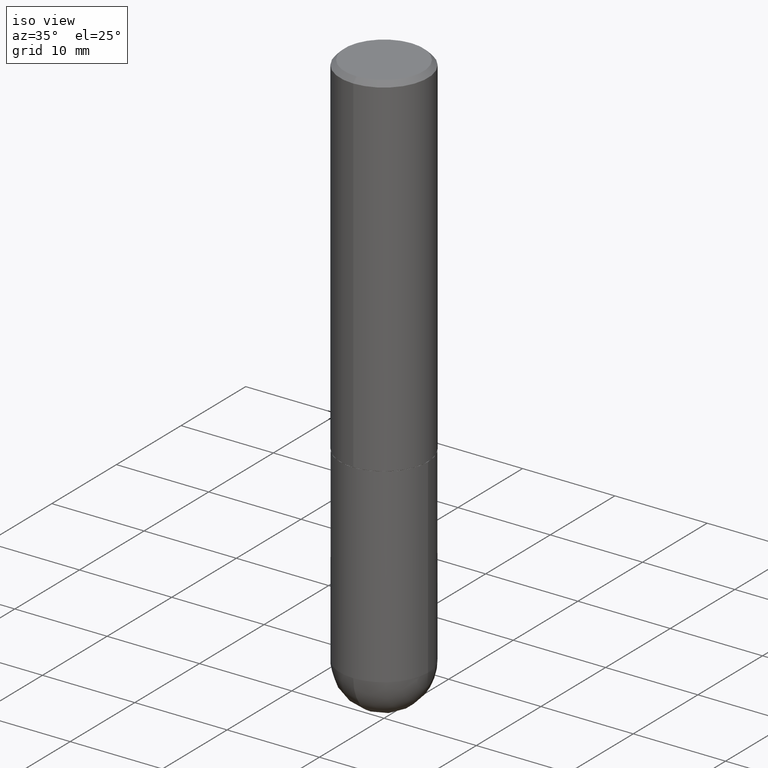
[diagram: clean part render]
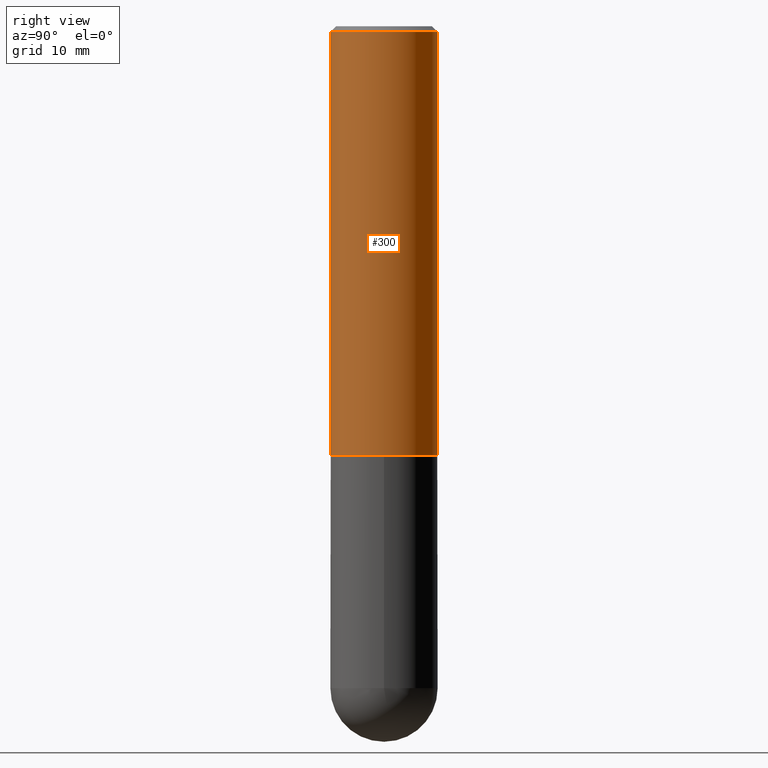
[diagram: tour spotlight — one face highlighted and labeled with its STEP entity id]
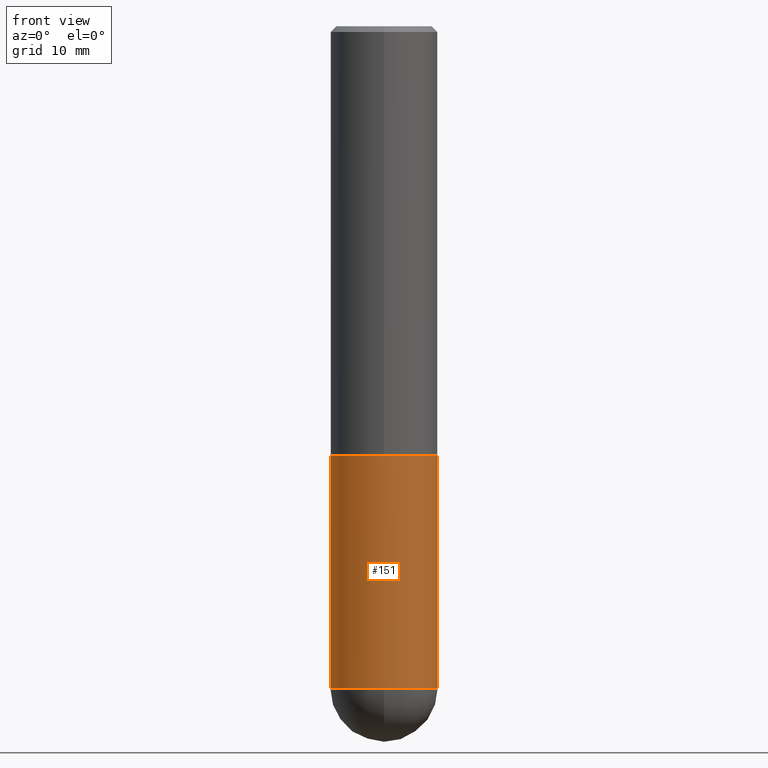
[diagram: tour spotlight — one face highlighted and labeled with its STEP entity id]
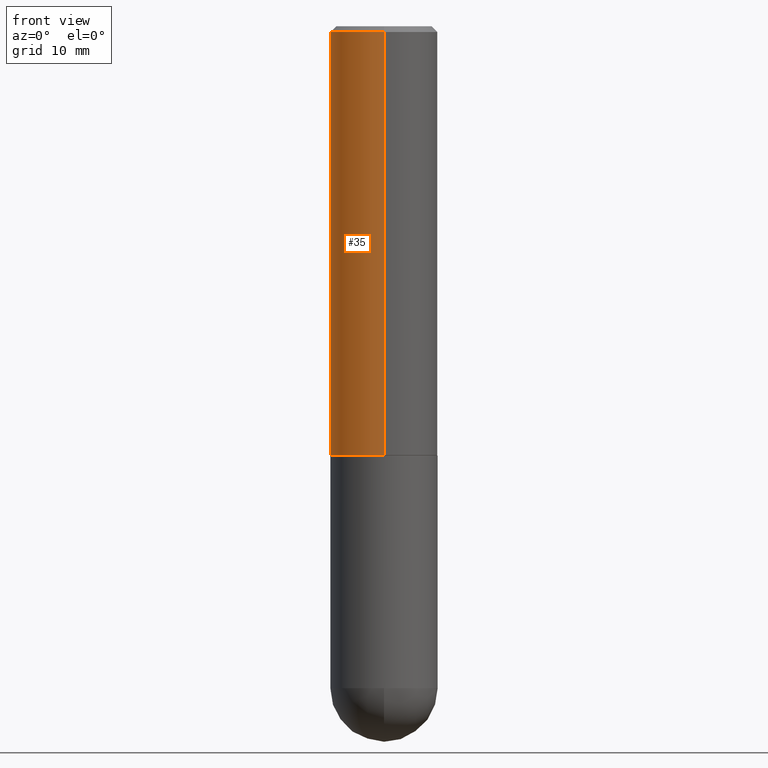
[diagram: tour spotlight — one face highlighted and labeled with its STEP entity id]
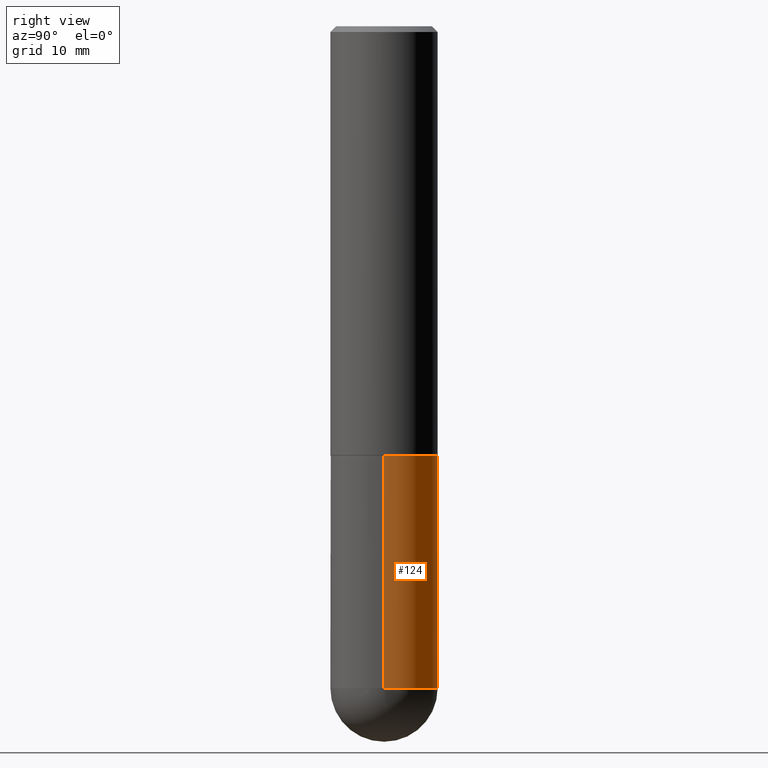
[diagram: tour spotlight — one face highlighted and labeled with its STEP entity id]
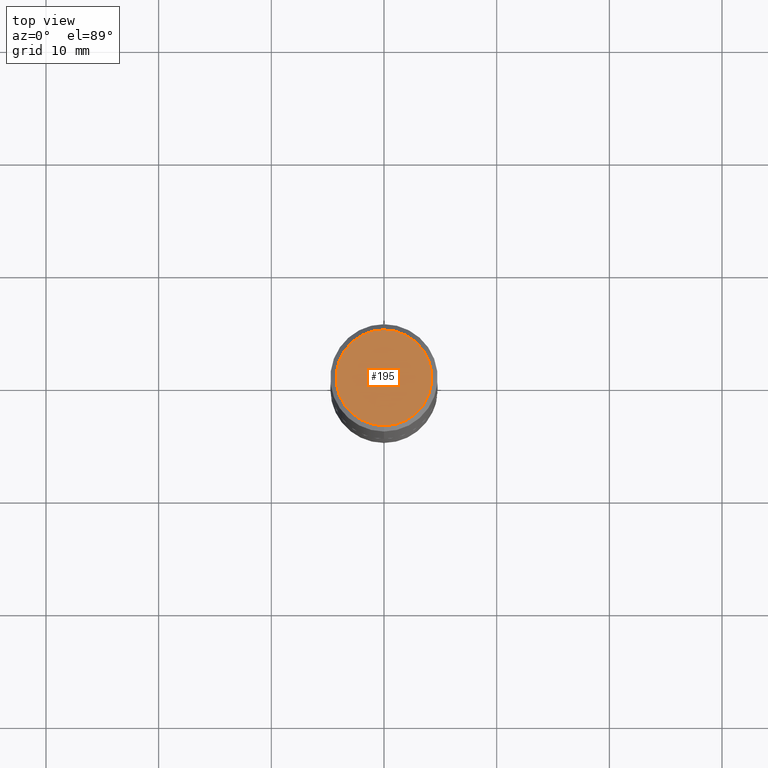
[diagram: tour spotlight — one face highlighted and labeled with its STEP entity id]
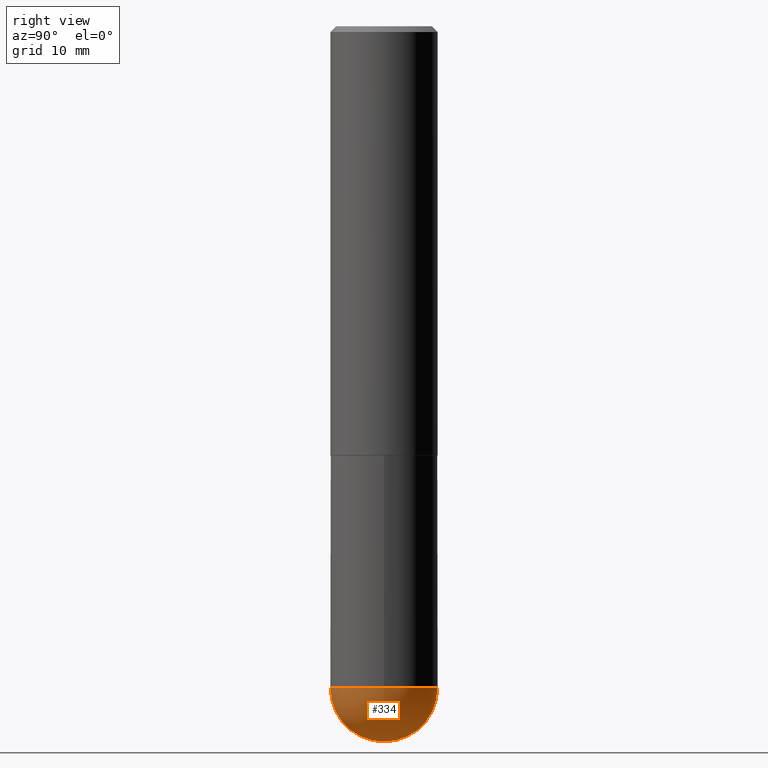
[diagram: tour spotlight — one face highlighted and labeled with its STEP entity id]
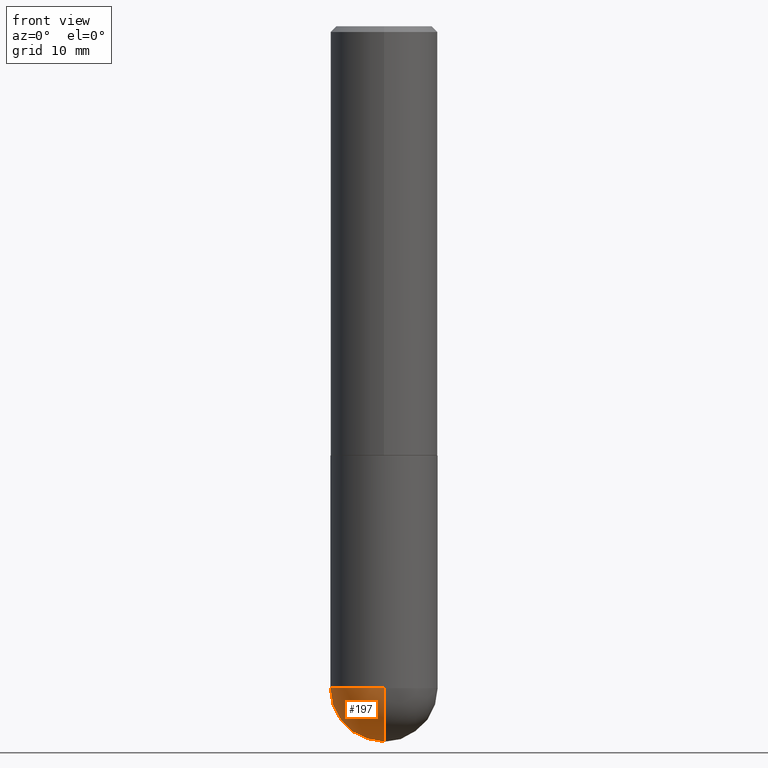
[diagram: tour spotlight — one face highlighted and labeled with its STEP entity id]
A machine part: a face-by-face anatomy tour. The part has 13 B-rep faces; the first image is the clean iso view, then the 7 largest visible faces are spotlighted one at a time (largest first), each with its STEP entity span.

Face 1 — right view, entity #300. In plain terms, the highlighted cylindrical surface (partial cylindrical patch) has radius 4.7625 mm, axis along (-0, 0, 1).
Definition (entity closure, byte-faithful):
#1 = ORIENTED_EDGE ( 'NONE', *, *, #396, .F. ) ;
#12 = EDGE_CURVE ( 'NONE', #157, #142, #246, .T. ) ;
#13 = VECTOR ( 'NONE', #284, 39.37007874015748143 ) ;
#15 = DIRECTION ( 'NONE',  ( -6.982962677686265922E-15, -1.000000000000000000, 2.913971193241877611E-15 ) ) ;
#16 = FACE_OUTER_BOUND ( 'NONE', #186, .T. ) ;
#27 = DIRECTION ( 'NONE',  ( -2.446325823282041021E-29, 3.490254041581994604E-15, 1.000000000000000000 ) ) ;
#46 = DIRECTION ( 'NONE',  ( -6.982962677686266711E-15, -1.000000000000000000, 3.483106191921935949E-15 ) ) ;
#62 = DIRECTION ( 'NONE',  ( -6.982962677686266711E-15, -1.000000000000000000, 3.490254041581994210E-15 ) ) ;
#78 = VERTEX_POINT ( 'NONE', #159 ) ;
#87 = CARTESIAN_POINT ( 'NONE',  ( -1.309305502066139509E-15, -0.1875000000000054123, -1.498999999999999444 ) ) ;
#114 = ORIENTED_EDGE ( 'NONE', *, *, #312, .T. ) ;
#118 = CYLINDRICAL_SURFACE ( 'NONE', #208, 0.1875000000000000833 ) ;
#142 = VERTEX_POINT ( 'NONE', #187 ) ;
#143 = EDGE_CURVE ( 'NONE', #157, #235, #406, .T. ) ;
#153 = CARTESIAN_POINT ( 'NONE',  ( -1.309305502066175600E-15, -0.1875000000000000833, 6.544226327966242348E-16 ) ) ;
#157 = VERTEX_POINT ( 'NONE', #87 ) ;
#159 = CARTESIAN_POINT ( 'NONE',  ( 1.309305502066175205E-15, 0.1874999999999999167, -0.02000000000000069431 ) ) ;
#186 = EDGE_LOOP ( 'NONE', ( #189, #114, #1, #263 ) ) ;
#187 = CARTESIAN_POINT ( 'NONE',  ( 1.332267629550206781E-15, 0.1874999999999949485, -1.499000000000000554 ) ) ;
#189 = ORIENTED_EDGE ( 'NONE', *, *, #12, .T. ) ;
#193 = CIRCLE ( 'NONE', #326, 0.1874999999999999722 ) ;
#201 = DIRECTION ( 'NONE',  ( -2.446325823282041021E-29, 3.490254041581994604E-15, 1.000000000000000000 ) ) ;
#208 = AXIS2_PLACEMENT_3D ( 'NONE', #287, #27, #62 ) ;
#235 = VERTEX_POINT ( 'NONE', #325 ) ;
#243 = CARTESIAN_POINT ( 'NONE',  ( 3.667042409099778861E-29, -5.231890808331411425E-15, -1.499000000000000110 ) ) ;
#246 = CIRCLE ( 'NONE', #377, 0.1875000000000001943 ) ;
#250 = DIRECTION ( 'NONE',  ( -2.446325823282041302E-29, 3.490254041581994604E-15, 1.000000000000000000 ) ) ;
#263 = ORIENTED_EDGE ( 'NONE', *, *, #143, .F. ) ;
#273 = CARTESIAN_POINT ( 'NONE',  ( 4.892651646564092307E-31, -6.980508083164003605E-17, -0.02000000000000004205 ) ) ;
#284 = DIRECTION ( 'NONE',  ( -2.446325823282041302E-29, 3.490254041581994604E-15, 1.000000000000000000 ) ) ;
#287 = CARTESIAN_POINT ( 'NONE',  ( 0.000000000000000000, 0.000000000000000000, 0.000000000000000000 ) ) ;
#300 = ADVANCED_FACE ( 'NONE', ( #16 ), #118, .T. ) ;
#312 = EDGE_CURVE ( 'NONE', #142, #78, #347, .T. ) ;
#313 = VECTOR ( 'NONE', #250, 39.37007874015748143 ) ;
#325 = CARTESIAN_POINT ( 'NONE',  ( -1.286343374582161379E-15, -0.1875000000000000555, -0.01999999999999938979 ) ) ;
#326 = AXIS2_PLACEMENT_3D ( 'NONE', #273, #201, #46 ) ;
#344 = CARTESIAN_POINT ( 'NONE',  ( 1.332267629550188243E-15, 0.1875000000000000833, -6.544226327966242348E-16 ) ) ;
#347 = LINE ( 'NONE', #344, #13 ) ;
#364 = DIRECTION ( 'NONE',  ( -2.446325823282041021E-29, 3.490254041581994604E-15, 1.000000000000000000 ) ) ;
#377 = AXIS2_PLACEMENT_3D ( 'NONE', #243, #364, #15 ) ;
#396 = EDGE_CURVE ( 'NONE', #235, #78, #193, .T. ) ;
#406 = LINE ( 'NONE', #153, #313 ) ;

Face 2 — front view, entity #151. In plain terms, the highlighted cylindrical surface (partial cylindrical patch) has radius 4.7625 mm, axis along (-0, 0, 1).
Definition (entity closure, byte-faithful):
#5 = AXIS2_PLACEMENT_3D ( 'NONE', #335, #275, #401 ) ;
#20 = VECTOR ( 'NONE', #256, 39.37007874015748143 ) ;
#26 = CARTESIAN_POINT ( 'NONE',  ( 0.000000000000000000, 0.000000000000000000, 0.000000000000000000 ) ) ;
#48 = DIRECTION ( 'NONE',  ( -2.445468806185136597E-29, 3.491481338843145583E-15, 1.000000000000000000 ) ) ;
#56 = CIRCLE ( 'NONE', #307, 0.1875000000000000555 ) ;
#57 = DIRECTION ( 'NONE',  ( -2.445468806185136877E-29, 3.491481338843145188E-15, 1.000000000000000000 ) ) ;
#64 = VERTEX_POINT ( 'NONE', #302 ) ;
#72 = CARTESIAN_POINT ( 'NONE',  ( 0.1875000000000000555, -1.309305502066175205E-15, 9.142831454617382414E-30 ) ) ;
#83 = CIRCLE ( 'NONE', #100, 0.1875000000000000555 ) ;
#84 = ORIENTED_EDGE ( 'NONE', *, *, #330, .T. ) ;
#91 = CARTESIAN_POINT ( 'NONE',  ( -0.1875000000000000555, 1.332267629550188243E-15, -9.223003294227950793E-30 ) ) ;
#97 = VERTEX_POINT ( 'NONE', #224 ) ;
#100 = AXIS2_PLACEMENT_3D ( 'NONE', #317, #48, #242 ) ;
#103 = DIRECTION ( 'NONE',  ( -2.445468806185136597E-29, 3.491481338843145583E-15, 1.000000000000000000 ) ) ;
#104 = ORIENTED_EDGE ( 'NONE', *, *, #345, .T. ) ;
#134 = ORIENTED_EDGE ( 'NONE', *, *, #280, .F. ) ;
#145 = CARTESIAN_POINT ( 'NONE',  ( 5.655146614303128380E-29, -8.074050596074775072E-15, -2.312500000000000000 ) ) ;
#151 = ADVANCED_FACE ( 'NONE', ( #343 ), #306, .T. ) ;
#176 = CARTESIAN_POINT ( 'NONE',  ( 0.1875000000000000278, -6.546527510330893974E-15, -1.500000000000000222 ) ) ;
#177 = LINE ( 'NONE', #72, #20 ) ;
#202 = CIRCLE ( 'NONE', #5, 0.1875000000000000278 ) ;
#224 = CARTESIAN_POINT ( 'NONE',  ( -0.1875000000000000278, -5.323368672619557593E-15, -1.500000000000000222 ) ) ;
#240 = DIRECTION ( 'NONE',  ( -2.445468806185136597E-29, 3.491481338843145583E-15, 1.000000000000000000 ) ) ;
#242 = DIRECTION ( 'NONE',  ( 1.000000000000000000, -6.982962677686270655E-15, 0.000000000000000000 ) ) ;
#256 = DIRECTION ( 'NONE',  ( -2.445468806185136877E-29, 3.491481338843145188E-15, 1.000000000000000000 ) ) ;
#266 = EDGE_CURVE ( 'NONE', #410, #293, #177, .T. ) ;
#275 = DIRECTION ( 'NONE',  ( -2.445468806185136597E-29, 3.491481338843145583E-15, 1.000000000000000000 ) ) ;
#280 = EDGE_CURVE ( 'NONE', #97, #293, #202, .T. ) ;
#293 = VERTEX_POINT ( 'NONE', #176 ) ;
#297 = AXIS2_PLACEMENT_3D ( 'NONE', #26, #103, #408 ) ;
#302 = CARTESIAN_POINT ( 'NONE',  ( -0.1875000000000000555, -5.323368672619559170E-15, -2.312500000000000000 ) ) ;
#306 = CYLINDRICAL_SURFACE ( 'NONE', #297, 0.1875000000000000555 ) ;
#307 = AXIS2_PLACEMENT_3D ( 'NONE', #145, #240, #393 ) ;
#317 = CARTESIAN_POINT ( 'NONE',  ( 5.655146614303128380E-29, -8.074050596074775072E-15, -2.312500000000000000 ) ) ;
#321 = ORIENTED_EDGE ( 'NONE', *, *, #266, .T. ) ;
#322 = CARTESIAN_POINT ( 'NONE',  ( 0.1875000000000000555, -7.964941804235924394E-15, -2.312500000000000000 ) ) ;
#330 = EDGE_CURVE ( 'NONE', #64, #385, #83, .T. ) ;
#335 = CARTESIAN_POINT ( 'NONE',  ( 3.668203209277704895E-29, -5.237222008264718177E-15, -1.500000000000000222 ) ) ;
#343 = FACE_OUTER_BOUND ( 'NONE', #358, .T. ) ;
#345 = EDGE_CURVE ( 'NONE', #385, #410, #56, .T. ) ;
#350 = VECTOR ( 'NONE', #57, 39.37007874015748143 ) ;
#356 = ORIENTED_EDGE ( 'NONE', *, *, #412, .F. ) ;
#358 = EDGE_LOOP ( 'NONE', ( #356, #84, #104, #321, #134 ) ) ;
#370 = CARTESIAN_POINT ( 'NONE',  ( -1.332267629550134009E-15, -0.1875000000000084932, -2.312499999999999556 ) ) ;
#385 = VERTEX_POINT ( 'NONE', #370 ) ;
#393 = DIRECTION ( 'NONE',  ( 1.000000000000000000, -6.982962677686270655E-15, 0.000000000000000000 ) ) ;
#395 = LINE ( 'NONE', #91, #350 ) ;
#401 = DIRECTION ( 'NONE',  ( 1.000000000000000000, -6.982962677686266711E-15, 0.000000000000000000 ) ) ;
#408 = DIRECTION ( 'NONE',  ( 1.000000000000000000, -6.982962677686265922E-15, 4.876176775795935793E-29 ) ) ;
#410 = VERTEX_POINT ( 'NONE', #322 ) ;
#412 = EDGE_CURVE ( 'NONE', #64, #97, #395, .T. ) ;

Face 3 — front view, entity #35. In plain terms, the highlighted cylindrical surface (partial cylindrical patch) has radius 4.7625 mm, axis along (-0, 0, 1).
Definition (entity closure, byte-faithful):
#13 = VECTOR ( 'NONE', #284, 39.37007874015748143 ) ;
#18 = ORIENTED_EDGE ( 'NONE', *, *, #312, .F. ) ;
#31 = CARTESIAN_POINT ( 'NONE',  ( 0.000000000000000000, 0.000000000000000000, 0.000000000000000000 ) ) ;
#35 = ADVANCED_FACE ( 'NONE', ( #277 ), #376, .T. ) ;
#36 = EDGE_CURVE ( 'NONE', #78, #235, #169, .T. ) ;
#52 = DIRECTION ( 'NONE',  ( -2.446325823282041021E-29, 3.490254041581994604E-15, 1.000000000000000000 ) ) ;
#63 = DIRECTION ( 'NONE',  ( -6.982962677686266711E-15, -1.000000000000000000, 3.490254041581994210E-15 ) ) ;
#68 = EDGE_LOOP ( 'NONE', ( #18, #258, #106, #109 ) ) ;
#78 = VERTEX_POINT ( 'NONE', #159 ) ;
#87 = CARTESIAN_POINT ( 'NONE',  ( -1.309305502066139509E-15, -0.1875000000000054123, -1.498999999999999444 ) ) ;
#106 = ORIENTED_EDGE ( 'NONE', *, *, #143, .T. ) ;
#109 = ORIENTED_EDGE ( 'NONE', *, *, #36, .F. ) ;
#142 = VERTEX_POINT ( 'NONE', #187 ) ;
#143 = EDGE_CURVE ( 'NONE', #157, #235, #406, .T. ) ;
#144 = AXIS2_PLACEMENT_3D ( 'NONE', #231, #52, #146 ) ;
#146 = DIRECTION ( 'NONE',  ( -6.982962677686265922E-15, -1.000000000000000000, 2.913971193241877611E-15 ) ) ;
#153 = CARTESIAN_POINT ( 'NONE',  ( -1.309305502066175600E-15, -0.1875000000000000833, 6.544226327966242348E-16 ) ) ;
#157 = VERTEX_POINT ( 'NONE', #87 ) ;
#159 = CARTESIAN_POINT ( 'NONE',  ( 1.309305502066175205E-15, 0.1874999999999999167, -0.02000000000000069431 ) ) ;
#160 = AXIS2_PLACEMENT_3D ( 'NONE', #309, #218, #179 ) ;
#169 = CIRCLE ( 'NONE', #160, 0.1874999999999999722 ) ;
#179 = DIRECTION ( 'NONE',  ( -6.982962677686266711E-15, -1.000000000000000000, 3.483106191921935949E-15 ) ) ;
#187 = CARTESIAN_POINT ( 'NONE',  ( 1.332267629550206781E-15, 0.1874999999999949485, -1.499000000000000554 ) ) ;
#209 = EDGE_CURVE ( 'NONE', #142, #157, #378, .T. ) ;
#218 = DIRECTION ( 'NONE',  ( -2.446325823282041021E-29, 3.490254041581994604E-15, 1.000000000000000000 ) ) ;
#231 = CARTESIAN_POINT ( 'NONE',  ( 3.667042409099778861E-29, -5.231890808331411425E-15, -1.499000000000000110 ) ) ;
#235 = VERTEX_POINT ( 'NONE', #325 ) ;
#250 = DIRECTION ( 'NONE',  ( -2.446325823282041302E-29, 3.490254041581994604E-15, 1.000000000000000000 ) ) ;
#258 = ORIENTED_EDGE ( 'NONE', *, *, #209, .T. ) ;
#277 = FACE_OUTER_BOUND ( 'NONE', #68, .T. ) ;
#284 = DIRECTION ( 'NONE',  ( -2.446325823282041302E-29, 3.490254041581994604E-15, 1.000000000000000000 ) ) ;
#309 = CARTESIAN_POINT ( 'NONE',  ( 4.892651646564092307E-31, -6.980508083164003605E-17, -0.02000000000000004205 ) ) ;
#312 = EDGE_CURVE ( 'NONE', #142, #78, #347, .T. ) ;
#313 = VECTOR ( 'NONE', #250, 39.37007874015748143 ) ;
#325 = CARTESIAN_POINT ( 'NONE',  ( -1.286343374582161379E-15, -0.1875000000000000555, -0.01999999999999938979 ) ) ;
#328 = AXIS2_PLACEMENT_3D ( 'NONE', #31, #333, #63 ) ;
#333 = DIRECTION ( 'NONE',  ( -2.446325823282041021E-29, 3.490254041581994604E-15, 1.000000000000000000 ) ) ;
#344 = CARTESIAN_POINT ( 'NONE',  ( 1.332267629550188243E-15, 0.1875000000000000833, -6.544226327966242348E-16 ) ) ;
#347 = LINE ( 'NONE', #344, #13 ) ;
#376 = CYLINDRICAL_SURFACE ( 'NONE', #328, 0.1875000000000000833 ) ;
#378 = CIRCLE ( 'NONE', #144, 0.1875000000000001943 ) ;
#406 = LINE ( 'NONE', #153, #313 ) ;

Face 4 — right view, entity #124. In plain terms, the highlighted cylindrical surface (partial cylindrical patch) has radius 4.7625 mm, axis along (-0, 0, 1).
Definition (entity closure, byte-faithful):
#11 = EDGE_LOOP ( 'NONE', ( #286, #348, #318, #37, #40 ) ) ;
#19 = CARTESIAN_POINT ( 'NONE',  ( 5.655146614303128380E-29, -8.074050596074775072E-15, -2.312500000000000000 ) ) ;
#20 = VECTOR ( 'NONE', #256, 39.37007874015748143 ) ;
#37 = ORIENTED_EDGE ( 'NONE', *, *, #266, .F. ) ;
#40 = ORIENTED_EDGE ( 'NONE', *, *, #181, .T. ) ;
#42 = AXIS2_PLACEMENT_3D ( 'NONE', #121, #212, #366 ) ;
#47 = EDGE_CURVE ( 'NONE', #293, #97, #222, .T. ) ;
#50 = AXIS2_PLACEMENT_3D ( 'NONE', #191, #105, #206 ) ;
#57 = DIRECTION ( 'NONE',  ( -2.445468806185136877E-29, 3.491481338843145188E-15, 1.000000000000000000 ) ) ;
#61 = CARTESIAN_POINT ( 'NONE',  ( 0.000000000000000000, 0.000000000000000000, 0.000000000000000000 ) ) ;
#64 = VERTEX_POINT ( 'NONE', #302 ) ;
#72 = CARTESIAN_POINT ( 'NONE',  ( 0.1875000000000000555, -1.309305502066175205E-15, 9.142831454617382414E-30 ) ) ;
#91 = CARTESIAN_POINT ( 'NONE',  ( -0.1875000000000000555, 1.332267629550188243E-15, -9.223003294227950793E-30 ) ) ;
#97 = VERTEX_POINT ( 'NONE', #224 ) ;
#105 = DIRECTION ( 'NONE',  ( -2.445468806185136597E-29, 3.491481338843145583E-15, 1.000000000000000000 ) ) ;
#121 = CARTESIAN_POINT ( 'NONE',  ( 3.668203209277704895E-29, -5.237222008264718177E-15, -1.500000000000000222 ) ) ;
#123 = CARTESIAN_POINT ( 'NONE',  ( 1.309305502066231017E-15, 0.1874999999999918954, -2.312500000000000444 ) ) ;
#124 = ADVANCED_FACE ( 'NONE', ( #398 ), #245, .T. ) ;
#176 = CARTESIAN_POINT ( 'NONE',  ( 0.1875000000000000278, -6.546527510330893974E-15, -1.500000000000000222 ) ) ;
#177 = LINE ( 'NONE', #72, #20 ) ;
#181 = EDGE_CURVE ( 'NONE', #410, #290, #228, .T. ) ;
#183 = DIRECTION ( 'NONE',  ( -2.445468806185136597E-29, 3.491481338843145583E-15, 1.000000000000000000 ) ) ;
#191 = CARTESIAN_POINT ( 'NONE',  ( 5.655146614303128380E-29, -8.074050596074775072E-15, -2.312500000000000000 ) ) ;
#206 = DIRECTION ( 'NONE',  ( 1.000000000000000000, -6.982962677686270655E-15, 0.000000000000000000 ) ) ;
#212 = DIRECTION ( 'NONE',  ( -2.445468806185136597E-29, 3.491481338843145583E-15, 1.000000000000000000 ) ) ;
#222 = CIRCLE ( 'NONE', #42, 0.1875000000000000278 ) ;
#224 = CARTESIAN_POINT ( 'NONE',  ( -0.1875000000000000278, -5.323368672619557593E-15, -1.500000000000000222 ) ) ;
#228 = CIRCLE ( 'NONE', #50, 0.1875000000000000555 ) ;
#245 = CYLINDRICAL_SURFACE ( 'NONE', #298, 0.1875000000000000555 ) ;
#256 = DIRECTION ( 'NONE',  ( -2.445468806185136877E-29, 3.491481338843145188E-15, 1.000000000000000000 ) ) ;
#266 = EDGE_CURVE ( 'NONE', #410, #293, #177, .T. ) ;
#270 = CIRCLE ( 'NONE', #369, 0.1875000000000000555 ) ;
#283 = EDGE_CURVE ( 'NONE', #290, #64, #270, .T. ) ;
#286 = ORIENTED_EDGE ( 'NONE', *, *, #283, .T. ) ;
#290 = VERTEX_POINT ( 'NONE', #123 ) ;
#293 = VERTEX_POINT ( 'NONE', #176 ) ;
#298 = AXIS2_PLACEMENT_3D ( 'NONE', #61, #183, #303 ) ;
#301 = DIRECTION ( 'NONE',  ( -2.445468806185136597E-29, 3.491481338843145583E-15, 1.000000000000000000 ) ) ;
#302 = CARTESIAN_POINT ( 'NONE',  ( -0.1875000000000000555, -5.323368672619559170E-15, -2.312500000000000000 ) ) ;
#303 = DIRECTION ( 'NONE',  ( 1.000000000000000000, -6.982962677686265922E-15, 4.876176775795935793E-29 ) ) ;
#318 = ORIENTED_EDGE ( 'NONE', *, *, #47, .F. ) ;
#322 = CARTESIAN_POINT ( 'NONE',  ( 0.1875000000000000555, -7.964941804235924394E-15, -2.312500000000000000 ) ) ;
#348 = ORIENTED_EDGE ( 'NONE', *, *, #412, .T. ) ;
#350 = VECTOR ( 'NONE', #57, 39.37007874015748143 ) ;
#366 = DIRECTION ( 'NONE',  ( 1.000000000000000000, -6.982962677686266711E-15, 0.000000000000000000 ) ) ;
#369 = AXIS2_PLACEMENT_3D ( 'NONE', #19, #301, #399 ) ;
#395 = LINE ( 'NONE', #91, #350 ) ;
#398 = FACE_OUTER_BOUND ( 'NONE', #11, .T. ) ;
#399 = DIRECTION ( 'NONE',  ( 1.000000000000000000, -6.982962677686270655E-15, 0.000000000000000000 ) ) ;
#410 = VERTEX_POINT ( 'NONE', #322 ) ;
#412 = EDGE_CURVE ( 'NONE', #64, #97, #395, .T. ) ;

Face 5 — top view, entity #195. In plain terms, the highlighted planar face has unit normal (0, -0, -1).
Definition (entity closure, byte-faithful):
#4 = DIRECTION ( 'NONE',  ( 2.446325823282040741E-29, -3.490254041581994604E-15, -1.000000000000000000 ) ) ;
#32 = VERTEX_POINT ( 'NONE', #101 ) ;
#33 = AXIS2_PLACEMENT_3D ( 'NONE', #372, #89, #215 ) ;
#41 = ORIENTED_EDGE ( 'NONE', *, *, #225, .T. ) ;
#49 = CARTESIAN_POINT ( 'NONE',  ( 1.169646248512449398E-15, 0.1674999999999999545, -5.740490568853542942E-16 ) ) ;
#65 = CIRCLE ( 'NONE', #119, 0.1674999999999999545 ) ;
#75 = CARTESIAN_POINT ( 'NONE',  ( -5.170796485305438754E-46, 7.377346533023360071E-32, 2.113699015925929127E-17 ) ) ;
#89 = DIRECTION ( 'NONE',  ( -2.446325823282041021E-29, 3.490254041581994604E-15, 1.000000000000000000 ) ) ;
#101 = CARTESIAN_POINT ( 'NONE',  ( -1.217738394604446442E-15, -0.1674999999999999545, 6.057545421242431695E-16 ) ) ;
#102 = EDGE_CURVE ( 'NONE', #361, #32, #259, .T. ) ;
#110 = ORIENTED_EDGE ( 'NONE', *, *, #102, .T. ) ;
#117 = FACE_OUTER_BOUND ( 'NONE', #232, .T. ) ;
#119 = AXIS2_PLACEMENT_3D ( 'NONE', #75, #324, #173 ) ;
#173 = DIRECTION ( 'NONE',  ( -6.982962677686266711E-15, -1.000000000000000000, 3.490254041581994210E-15 ) ) ;
#195 = ADVANCED_FACE ( 'NONE', ( #117 ), #316, .F. ) ;
#215 = DIRECTION ( 'NONE',  ( -6.982962677686266711E-15, -1.000000000000000000, 3.490254041581994210E-15 ) ) ;
#225 = EDGE_CURVE ( 'NONE', #32, #361, #65, .T. ) ;
#232 = EDGE_LOOP ( 'NONE', ( #110, #41 ) ) ;
#259 = CIRCLE ( 'NONE', #33, 0.1674999999999999545 ) ;
#274 = AXIS2_PLACEMENT_3D ( 'NONE', #49, #4, #346 ) ;
#316 = PLANE ( 'NONE',  #274 ) ;
#324 = DIRECTION ( 'NONE',  ( -2.446325823282041021E-29, 3.490254041581994604E-15, 1.000000000000000000 ) ) ;
#346 = DIRECTION ( 'NONE',  ( 6.982962677686265922E-15, 1.000000000000000000, -3.490254041581994604E-15 ) ) ;
#361 = VERTEX_POINT ( 'NONE', #394 ) ;
#372 = CARTESIAN_POINT ( 'NONE',  ( -5.170796485305438754E-46, 7.377346533023360071E-32, 2.113699015925929127E-17 ) ) ;
#394 = CARTESIAN_POINT ( 'NONE',  ( 1.239475875289312499E-15, 0.1674999999999999545, -5.634805618057246363E-16 ) ) ;

Face 6 — right view, entity #334. In plain terms, the highlighted spherical surface has radius 4.7625 mm.
Definition (entity closure, byte-faithful):
#50 = AXIS2_PLACEMENT_3D ( 'NONE', #191, #105, #206 ) ;
#56 = CIRCLE ( 'NONE', #307, 0.1875000000000000555 ) ;
#79 = ORIENTED_EDGE ( 'NONE', *, *, #181, .F. ) ;
#93 = CARTESIAN_POINT ( 'NONE',  ( 5.324026836389243254E-29, -8.548232964214825368E-15, -2.312500000000000000 ) ) ;
#105 = DIRECTION ( 'NONE',  ( -2.445468806185136597E-29, 3.491481338843145583E-15, 1.000000000000000000 ) ) ;
#108 = AXIS2_PLACEMENT_3D ( 'NONE', #93, #216, #154 ) ;
#123 = CARTESIAN_POINT ( 'NONE',  ( 1.309305502066231017E-15, 0.1874999999999918954, -2.312500000000000444 ) ) ;
#145 = CARTESIAN_POINT ( 'NONE',  ( 5.655146614303128380E-29, -8.074050596074775072E-15, -2.312500000000000000 ) ) ;
#147 = CARTESIAN_POINT ( 'NONE',  ( 5.324026836389243254E-29, -8.548232964214825368E-15, -2.312500000000000000 ) ) ;
#154 = DIRECTION ( 'NONE',  ( 6.982962677686265922E-15, 1.000000000000000000, 0.000000000000000000 ) ) ;
#175 = SPHERICAL_SURFACE ( 'NONE', #291, 0.1875000000000003331 ) ;
#178 = DIRECTION ( 'NONE',  ( -1.000000000000000000, 6.982962677686266711E-15, -4.883557194083113462E-29 ) ) ;
#180 = FACE_OUTER_BOUND ( 'NONE', #199, .T. ) ;
#181 = EDGE_CURVE ( 'NONE', #410, #290, #228, .T. ) ;
#191 = CARTESIAN_POINT ( 'NONE',  ( 5.655146614303128380E-29, -8.074050596074775072E-15, -2.312500000000000000 ) ) ;
#199 = EDGE_LOOP ( 'NONE', ( #226, #381, #79, #292 ) ) ;
#206 = DIRECTION ( 'NONE',  ( 1.000000000000000000, -6.982962677686270655E-15, 0.000000000000000000 ) ) ;
#213 = CARTESIAN_POINT ( 'NONE',  ( 5.324026836389243254E-29, -8.548232964214825368E-15, -2.312500000000000000 ) ) ;
#214 = CIRCLE ( 'NONE', #108, 0.1875000000000003331 ) ;
#216 = DIRECTION ( 'NONE',  ( 1.000000000000000000, -6.982962677686265922E-15, 4.883557194083112340E-29 ) ) ;
#226 = ORIENTED_EDGE ( 'NONE', *, *, #353, .F. ) ;
#228 = CIRCLE ( 'NONE', #50, 0.1875000000000000555 ) ;
#237 = DIRECTION ( 'NONE',  ( 6.982962677686266711E-15, 1.000000000000000000, -2.913971193241875639E-15 ) ) ;
#240 = DIRECTION ( 'NONE',  ( -2.445468806185136597E-29, 3.491481338843145583E-15, 1.000000000000000000 ) ) ;
#241 = CIRCLE ( 'NONE', #339, 0.1875000000000003331 ) ;
#268 = DIRECTION ( 'NONE',  ( -7.105427357600999492E-15, -1.000000000000000000, 0.000000000000000000 ) ) ;
#281 = VERTEX_POINT ( 'NONE', #354 ) ;
#290 = VERTEX_POINT ( 'NONE', #123 ) ;
#291 = AXIS2_PLACEMENT_3D ( 'NONE', #213, #178, #237 ) ;
#292 = ORIENTED_EDGE ( 'NONE', *, *, #345, .F. ) ;
#307 = AXIS2_PLACEMENT_3D ( 'NONE', #145, #240, #393 ) ;
#322 = CARTESIAN_POINT ( 'NONE',  ( 0.1875000000000000555, -7.964941804235924394E-15, -2.312500000000000000 ) ) ;
#327 = DIRECTION ( 'NONE',  ( -1.000000000000000000, 7.105427357601001070E-15, -4.926315508542082329E-29 ) ) ;
#334 = ADVANCED_FACE ( 'NONE', ( #180 ), #175, .T. ) ;
#339 = AXIS2_PLACEMENT_3D ( 'NONE', #147, #327, #268 ) ;
#345 = EDGE_CURVE ( 'NONE', #385, #410, #56, .T. ) ;
#353 = EDGE_CURVE ( 'NONE', #281, #385, #241, .T. ) ;
#354 = CARTESIAN_POINT ( 'NONE',  ( 5.790569421510013204E-29, -9.191404651505909607E-15, -2.500000000000000000 ) ) ;
#370 = CARTESIAN_POINT ( 'NONE',  ( -1.332267629550134009E-15, -0.1875000000000084932, -2.312499999999999556 ) ) ;
#381 = ORIENTED_EDGE ( 'NONE', *, *, #389, .T. ) ;
#385 = VERTEX_POINT ( 'NONE', #370 ) ;
#389 = EDGE_CURVE ( 'NONE', #281, #290, #214, .T. ) ;
#393 = DIRECTION ( 'NONE',  ( 1.000000000000000000, -6.982962677686270655E-15, 0.000000000000000000 ) ) ;
#410 = VERTEX_POINT ( 'NONE', #322 ) ;

Face 7 — front view, entity #197. In plain terms, the highlighted spherical surface has radius 4.7625 mm.
Definition (entity closure, byte-faithful):
#19 = CARTESIAN_POINT ( 'NONE',  ( 5.655146614303128380E-29, -8.074050596074775072E-15, -2.312500000000000000 ) ) ;
#48 = DIRECTION ( 'NONE',  ( -2.445468806185136597E-29, 3.491481338843145583E-15, 1.000000000000000000 ) ) ;
#64 = VERTEX_POINT ( 'NONE', #302 ) ;
#80 = DIRECTION ( 'NONE',  ( 6.982962677686266711E-15, 1.000000000000000000, -2.913971193241875639E-15 ) ) ;
#83 = CIRCLE ( 'NONE', #100, 0.1875000000000000555 ) ;
#93 = CARTESIAN_POINT ( 'NONE',  ( 5.324026836389243254E-29, -8.548232964214825368E-15, -2.312500000000000000 ) ) ;
#100 = AXIS2_PLACEMENT_3D ( 'NONE', #317, #48, #242 ) ;
#107 = AXIS2_PLACEMENT_3D ( 'NONE', #357, #352, #80 ) ;
#108 = AXIS2_PLACEMENT_3D ( 'NONE', #93, #216, #154 ) ;
#123 = CARTESIAN_POINT ( 'NONE',  ( 1.309305502066231017E-15, 0.1874999999999918954, -2.312500000000000444 ) ) ;
#147 = CARTESIAN_POINT ( 'NONE',  ( 5.324026836389243254E-29, -8.548232964214825368E-15, -2.312500000000000000 ) ) ;
#154 = DIRECTION ( 'NONE',  ( 6.982962677686265922E-15, 1.000000000000000000, 0.000000000000000000 ) ) ;
#165 = ORIENTED_EDGE ( 'NONE', *, *, #330, .F. ) ;
#166 = ORIENTED_EDGE ( 'NONE', *, *, #389, .F. ) ;
#168 = ORIENTED_EDGE ( 'NONE', *, *, #353, .T. ) ;
#197 = ADVANCED_FACE ( 'NONE', ( #227 ), #238, .T. ) ;
#214 = CIRCLE ( 'NONE', #108, 0.1875000000000003331 ) ;
#216 = DIRECTION ( 'NONE',  ( 1.000000000000000000, -6.982962677686265922E-15, 4.883557194083112340E-29 ) ) ;
#220 = ORIENTED_EDGE ( 'NONE', *, *, #283, .F. ) ;
#227 = FACE_OUTER_BOUND ( 'NONE', #233, .T. ) ;
#233 = EDGE_LOOP ( 'NONE', ( #166, #168, #165, #220 ) ) ;
#238 = SPHERICAL_SURFACE ( 'NONE', #107, 0.1875000000000003331 ) ;
#241 = CIRCLE ( 'NONE', #339, 0.1875000000000003331 ) ;
#242 = DIRECTION ( 'NONE',  ( 1.000000000000000000, -6.982962677686270655E-15, 0.000000000000000000 ) ) ;
#268 = DIRECTION ( 'NONE',  ( -7.105427357600999492E-15, -1.000000000000000000, 0.000000000000000000 ) ) ;
#270 = CIRCLE ( 'NONE', #369, 0.1875000000000000555 ) ;
#281 = VERTEX_POINT ( 'NONE', #354 ) ;
#283 = EDGE_CURVE ( 'NONE', #290, #64, #270, .T. ) ;
#290 = VERTEX_POINT ( 'NONE', #123 ) ;
#301 = DIRECTION ( 'NONE',  ( -2.445468806185136597E-29, 3.491481338843145583E-15, 1.000000000000000000 ) ) ;
#302 = CARTESIAN_POINT ( 'NONE',  ( -0.1875000000000000555, -5.323368672619559170E-15, -2.312500000000000000 ) ) ;
#317 = CARTESIAN_POINT ( 'NONE',  ( 5.655146614303128380E-29, -8.074050596074775072E-15, -2.312500000000000000 ) ) ;
#327 = DIRECTION ( 'NONE',  ( -1.000000000000000000, 7.105427357601001070E-15, -4.926315508542082329E-29 ) ) ;
#330 = EDGE_CURVE ( 'NONE', #64, #385, #83, .T. ) ;
#339 = AXIS2_PLACEMENT_3D ( 'NONE', #147, #327, #268 ) ;
#352 = DIRECTION ( 'NONE',  ( -1.000000000000000000, 6.982962677686266711E-15, -4.883557194083113462E-29 ) ) ;
#353 = EDGE_CURVE ( 'NONE', #281, #385, #241, .T. ) ;
#354 = CARTESIAN_POINT ( 'NONE',  ( 5.790569421510013204E-29, -9.191404651505909607E-15, -2.500000000000000000 ) ) ;
#357 = CARTESIAN_POINT ( 'NONE',  ( 5.324026836389243254E-29, -8.548232964214825368E-15, -2.312500000000000000 ) ) ;
#369 = AXIS2_PLACEMENT_3D ( 'NONE', #19, #301, #399 ) ;
#370 = CARTESIAN_POINT ( 'NONE',  ( -1.332267629550134009E-15, -0.1875000000000084932, -2.312499999999999556 ) ) ;
#385 = VERTEX_POINT ( 'NONE', #370 ) ;
#389 = EDGE_CURVE ( 'NONE', #281, #290, #214, .T. ) ;
#399 = DIRECTION ( 'NONE',  ( 1.000000000000000000, -6.982962677686270655E-15, 0.000000000000000000 ) ) ;